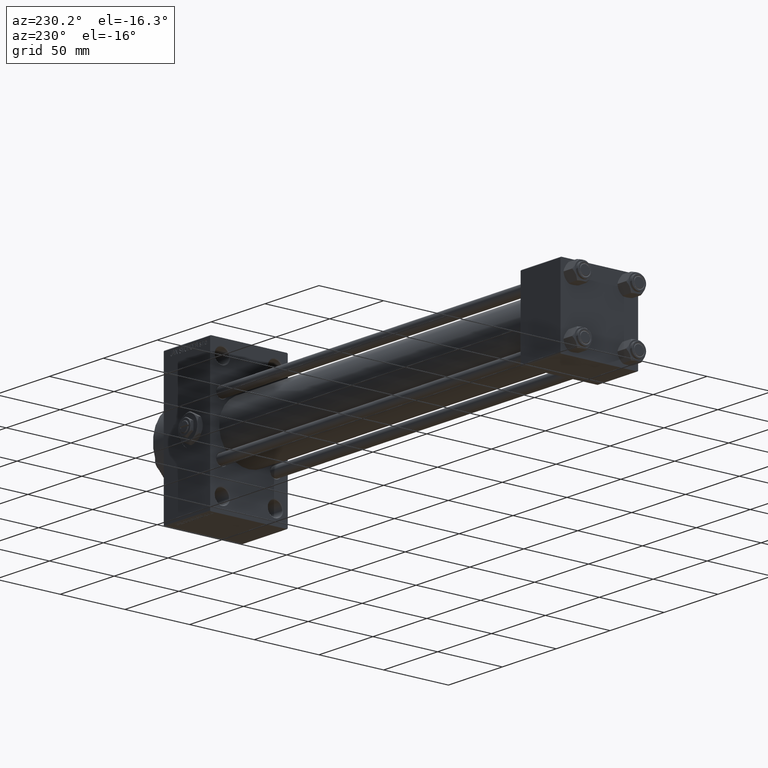
[diagram: clean part render]
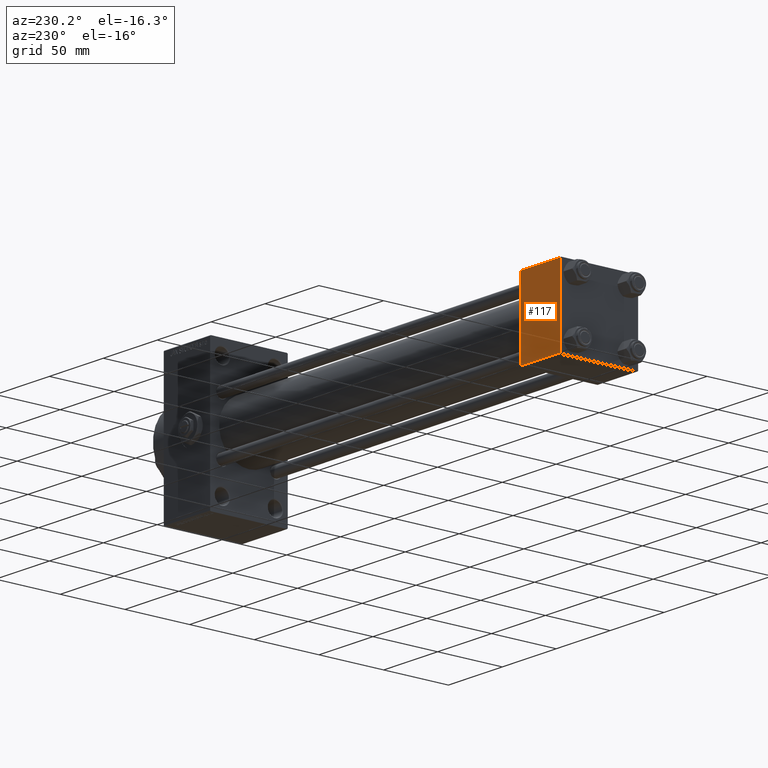
[diagram: same view with one face highlighted and labeled with its STEP entity id]
A machine part, auxiliary view. The second image highlights one B-rep face of the part: STEP entity #117.
In plain terms, the highlighted planar face has unit normal (0, 1, 0).
Its self-contained STEP definition (entity closure, byte-faithful):
#117 = ADVANCED_FACE ( 'NONE', ( #37260 ), #32805, .T. ) ;
#1418 = ORIENTED_EDGE ( 'NONE', *, *, #45596, .T. ) ;
#1956 = CARTESIAN_POINT ( 'NONE',  ( 0.000000000000000000, 29.99999999999999289, 30.00000000000000000 ) ) ;
#2867 = CARTESIAN_POINT ( 'NONE',  ( 37.00000000000000000, 29.99999999999999289, 29.50000000000000000 ) ) ;
#5974 = CARTESIAN_POINT ( 'NONE',  ( 37.00000000000000000, 29.99999999999999289, 30.00000000000000000 ) ) ;
#7036 = VERTEX_POINT ( 'NONE', #2867 ) ;
#10119 = CARTESIAN_POINT ( 'NONE',  ( 37.00000000000000000, 29.99999999999999289, -29.50000000000000000 ) ) ;
#10176 = DIRECTION ( 'NONE',  ( 0.000000000000000000, -0.000000000000000000, 1.000000000000000000 ) ) ;
#10178 = DIRECTION ( 'NONE',  ( 1.000000000000000000, 0.000000000000000000, 0.000000000000000000 ) ) ;
#11337 = VERTEX_POINT ( 'NONE', #37768 ) ;
#12236 = EDGE_LOOP ( 'NONE', ( #42754, #1418, #46677, #26179 ) ) ;
#15166 = LINE ( 'NONE', #33539, #36523 ) ;
#17143 = DIRECTION ( 'NONE',  ( 0.000000000000000000, 0.000000000000000000, -1.000000000000000000 ) ) ;
#20175 = EDGE_CURVE ( 'NONE', #11337, #35151, #36011, .T. ) ;
#20689 = VECTOR ( 'NONE', #34175, 1000.000000000000000 ) ;
#21075 = DIRECTION ( 'NONE',  ( -1.000000000000000000, 0.000000000000000000, 0.000000000000000000 ) ) ;
#22510 = CARTESIAN_POINT ( 'NONE',  ( 0.000000000000000000, 29.99999999999999289, -29.50000000000000000 ) ) ;
#25666 = VECTOR ( 'NONE', #17143, 1000.000000000000000 ) ;
#26179 = ORIENTED_EDGE ( 'NONE', *, *, #26460, .T. ) ;
#26460 = EDGE_CURVE ( 'NONE', #11337, #7036, #15166, .T. ) ;
#26663 = VERTEX_POINT ( 'NONE', #10119 ) ;
#31754 = CARTESIAN_POINT ( 'NONE',  ( 37.00000000000000000, 29.99999999999999289, -29.50000000000000000 ) ) ;
#32006 = LINE ( 'NONE', #31754, #43067 ) ;
#32805 = PLANE ( 'NONE',  #38627 ) ;
#33539 = CARTESIAN_POINT ( 'NONE',  ( 37.00000000000000000, 29.99999999999999289, 29.50000000000000000 ) ) ;
#34175 = DIRECTION ( 'NONE',  ( 0.000000000000000000, 0.000000000000000000, -1.000000000000000000 ) ) ;
#35151 = VERTEX_POINT ( 'NONE', #22510 ) ;
#36011 = LINE ( 'NONE', #1956, #25666 ) ;
#36523 = VECTOR ( 'NONE', #10178, 1000.000000000000000 ) ;
#37260 = FACE_OUTER_BOUND ( 'NONE', #12236, .T. ) ;
#37450 = EDGE_CURVE ( 'NONE', #7036, #26663, #46110, .T. ) ;
#37768 = CARTESIAN_POINT ( 'NONE',  ( 0.000000000000000000, 29.99999999999999289, 29.50000000000000000 ) ) ;
#38627 = AXIS2_PLACEMENT_3D ( 'NONE', #5974, #44234, #10176 ) ;
#42754 = ORIENTED_EDGE ( 'NONE', *, *, #37450, .T. ) ;
#43067 = VECTOR ( 'NONE', #21075, 1000.000000000000000 ) ;
#44234 = DIRECTION ( 'NONE',  ( -0.000000000000000000, 1.000000000000000000, 0.000000000000000000 ) ) ;
#45596 = EDGE_CURVE ( 'NONE', #26663, #35151, #32006, .T. ) ;
#45622 = CARTESIAN_POINT ( 'NONE',  ( 37.00000000000000000, 29.99999999999999289, 30.00000000000000000 ) ) ;
#46110 = LINE ( 'NONE', #45622, #20689 ) ;
#46677 = ORIENTED_EDGE ( 'NONE', *, *, #20175, .F. ) ;